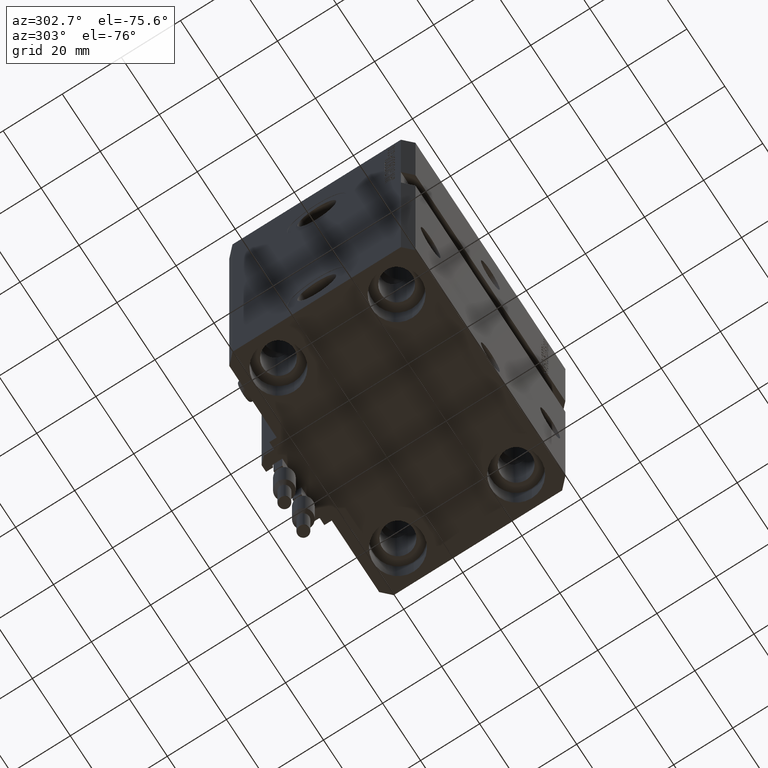
[diagram: clean part render]
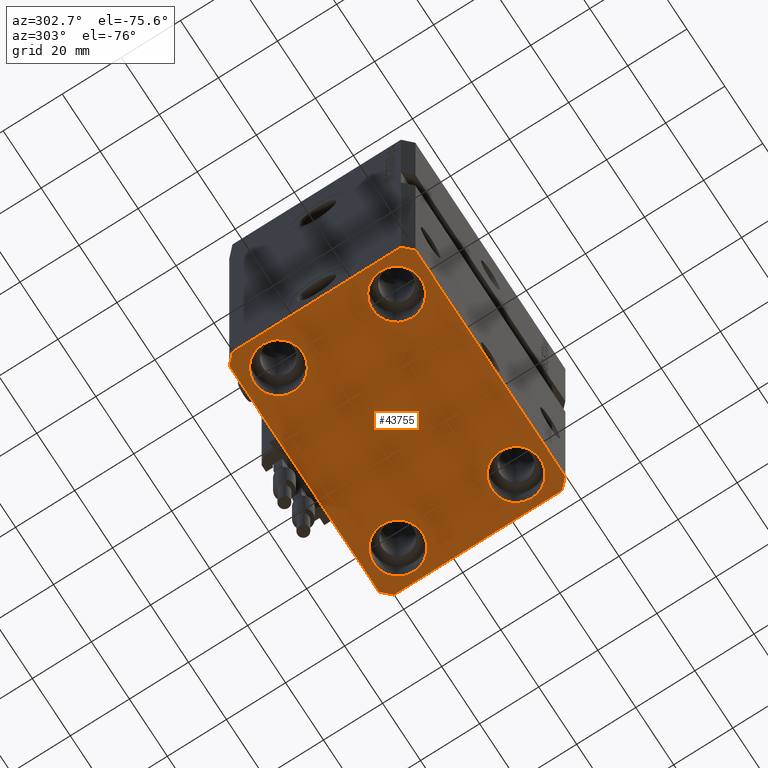
[diagram: same view with one face highlighted and labeled with its STEP entity id]
A machine part, auxiliary view. The second image highlights one B-rep face of the part: STEP entity #43755.
In plain terms, the highlighted planar face has unit normal (0, 0, 1).
Its self-contained STEP definition (entity closure, byte-faithful):
#263 = EDGE_CURVE ( 'NONE', #28839, #31645, #16067, .T. ) ;
#297 = ORIENTED_EDGE ( 'NONE', *, *, #1408, .F. ) ;
#313 = VECTOR ( 'NONE', #44669, 1000.000000000000000 ) ;
#593 = VERTEX_POINT ( 'NONE', #24576 ) ;
#632 = EDGE_CURVE ( 'NONE', #5877, #4064, #1685, .T. ) ;
#1134 = CARTESIAN_POINT ( 'NONE',  ( 31.50000000000000000, -20.00000000000000000, -123.0000000000000000 ) ) ;
#1408 = EDGE_CURVE ( 'NONE', #36962, #35902, #48893, .T. ) ;
#1685 = CIRCLE ( 'NONE', #41643, 8.250000000000000000 ) ;
#1818 = CARTESIAN_POINT ( 'NONE',  ( -31.50000000000000000, 20.00000000000000000, -123.0000000000000000 ) ) ;
#2023 = DIRECTION ( 'NONE',  ( 0.7071067811865483499, 0.7071067811865466846, 0.000000000000000000 ) ) ;
#2477 = VECTOR ( 'NONE', #2023, 1000.000000000000000 ) ;
#3087 = EDGE_LOOP ( 'NONE', ( #3405, #10742 ) ) ;
#3405 = ORIENTED_EDGE ( 'NONE', *, *, #33430, .T. ) ;
#3618 = DIRECTION ( 'NONE',  ( 0.7071067811865471286, -0.7071067811865479058, 0.000000000000000000 ) ) ;
#3641 = DIRECTION ( 'NONE',  ( 1.000000000000000000, 0.000000000000000000, 0.000000000000000000 ) ) ;
#4064 = VERTEX_POINT ( 'NONE', #13182 ) ;
#4069 = DIRECTION ( 'NONE',  ( 0.000000000000000000, 0.000000000000000000, 1.000000000000000000 ) ) ;
#4100 = CARTESIAN_POINT ( 'NONE',  ( 42.50000000000051870, 28.49999999999995381, -123.0000000000000000 ) ) ;
#4126 = EDGE_CURVE ( 'NONE', #16265, #36962, #12252, .T. ) ;
#4366 = DIRECTION ( 'NONE',  ( -0.000000000000000000, -0.000000000000000000, 1.000000000000000000 ) ) ;
#4886 = CARTESIAN_POINT ( 'NONE',  ( 31.50000000000000000, 20.00000000000001066, -123.0000000000000000 ) ) ;
#5203 = CARTESIAN_POINT ( 'NONE',  ( 31.50000000000000000, -20.00000000000000000, -123.0000000000000000 ) ) ;
#5209 = LINE ( 'NONE', #42964, #40178 ) ;
#5877 = VERTEX_POINT ( 'NONE', #26593 ) ;
#6294 = CARTESIAN_POINT ( 'NONE',  ( -31.50000000000000000, -20.00000000000000000, -123.0000000000000000 ) ) ;
#7218 = ORIENTED_EDGE ( 'NONE', *, *, #15534, .F. ) ;
#7322 = ORIENTED_EDGE ( 'NONE', *, *, #7858, .T. ) ;
#7745 = ORIENTED_EDGE ( 'NONE', *, *, #15670, .F. ) ;
#7858 = EDGE_CURVE ( 'NONE', #37567, #18969, #8631, .T. ) ;
#8631 = CIRCLE ( 'NONE', #23793, 8.249999999999992895 ) ;
#8680 = VERTEX_POINT ( 'NONE', #49241 ) ;
#9138 = DIRECTION ( 'NONE',  ( -0.000000000000000000, -0.000000000000000000, 1.000000000000000000 ) ) ;
#10148 = CARTESIAN_POINT ( 'NONE',  ( -42.50000000000000000, -28.50000000000000000, -123.0000000000000000 ) ) ;
#10680 = VERTEX_POINT ( 'NONE', #43454 ) ;
#10742 = ORIENTED_EDGE ( 'NONE', *, *, #21345, .T. ) ;
#10768 = ORIENTED_EDGE ( 'NONE', *, *, #263, .T. ) ;
#10868 = CARTESIAN_POINT ( 'NONE',  ( 42.50000000000051870, 28.49999999999995381, -123.0000000000000000 ) ) ;
#11249 = EDGE_LOOP ( 'NONE', ( #12694, #33121 ) ) ;
#11314 = CIRCLE ( 'NONE', #24863, 8.250000000000000000 ) ;
#11434 = DIRECTION ( 'NONE',  ( 1.000000000000000000, 0.000000000000000000, 0.000000000000000000 ) ) ;
#11490 = AXIS2_PLACEMENT_3D ( 'NONE', #43036, #24790, #47541 ) ;
#12066 = FACE_BOUND ( 'NONE', #25056, .T. ) ;
#12252 = LINE ( 'NONE', #36173, #14713 ) ;
#12694 = ORIENTED_EDGE ( 'NONE', *, *, #632, .T. ) ;
#12774 = DIRECTION ( 'NONE',  ( -0.000000000000000000, -0.000000000000000000, 1.000000000000000000 ) ) ;
#12900 = CARTESIAN_POINT ( 'NONE',  ( -42.50000000000000000, 28.50000000000000000, -123.0000000000000000 ) ) ;
#13079 = CIRCLE ( 'NONE', #11490, 8.249999999999992895 ) ;
#13182 = CARTESIAN_POINT ( 'NONE',  ( -23.25000000000000000, 20.00000000000000000, -123.0000000000000000 ) ) ;
#13193 = EDGE_LOOP ( 'NONE', ( #7218, #7745, #29128, #37751, #28073, #297, #28367, #17454 ) ) ;
#14353 = VERTEX_POINT ( 'NONE', #45367 ) ;
#14713 = VECTOR ( 'NONE', #23014, 1000.000000000000000 ) ;
#15420 = CARTESIAN_POINT ( 'NONE',  ( 39.50000000000000711, -31.50000000000000000, -123.0000000000000000 ) ) ;
#15534 = EDGE_CURVE ( 'NONE', #14353, #22332, #21869, .T. ) ;
#15670 = EDGE_CURVE ( 'NONE', #30491, #14353, #47261, .T. ) ;
#16067 = CIRCLE ( 'NONE', #24861, 8.249999999999992895 ) ;
#16207 = DIRECTION ( 'NONE',  ( 1.000000000000000000, 0.000000000000000000, 0.000000000000000000 ) ) ;
#16265 = VERTEX_POINT ( 'NONE', #12900 ) ;
#16746 = VECTOR ( 'NONE', #42345, 1000.000000000000114 ) ;
#17071 = DIRECTION ( 'NONE',  ( 1.000000000000000000, 0.000000000000000000, 0.000000000000000000 ) ) ;
#17307 = EDGE_CURVE ( 'NONE', #34768, #10680, #43791, .T. ) ;
#17454 = ORIENTED_EDGE ( 'NONE', *, *, #30087, .F. ) ;
#18648 = CARTESIAN_POINT ( 'NONE',  ( 42.50000000000000711, -28.50000000000000355, -123.0000000000000000 ) ) ;
#18969 = VERTEX_POINT ( 'NONE', #37415 ) ;
#19138 = CARTESIAN_POINT ( 'NONE',  ( -31.50000000000000000, -20.00000000000000000, -123.0000000000000000 ) ) ;
#19461 = VECTOR ( 'NONE', #26151, 1000.000000000000000 ) ;
#20163 = ORIENTED_EDGE ( 'NONE', *, *, #26850, .T. ) ;
#20630 = DIRECTION ( 'NONE',  ( 1.000000000000000000, 0.000000000000000000, 0.000000000000000000 ) ) ;
#21280 = CARTESIAN_POINT ( 'NONE',  ( 39.50000000000000711, -31.50000000000000000, -123.0000000000000000 ) ) ;
#21345 = EDGE_CURVE ( 'NONE', #593, #8680, #11314, .T. ) ;
#21396 = AXIS2_PLACEMENT_3D ( 'NONE', #42315, #4069, #27066 ) ;
#21532 = DIRECTION ( 'NONE',  ( -0.000000000000000000, -0.000000000000000000, 1.000000000000000000 ) ) ;
#21869 = LINE ( 'NONE', #29627, #35132 ) ;
#22332 = VERTEX_POINT ( 'NONE', #40782 ) ;
#22771 = AXIS2_PLACEMENT_3D ( 'NONE', #6294, #21532, #33270 ) ;
#23014 = DIRECTION ( 'NONE',  ( 0.000000000000000000, -1.000000000000000000, 0.000000000000000000 ) ) ;
#23714 = DIRECTION ( 'NONE',  ( -0.000000000000000000, -0.000000000000000000, 1.000000000000000000 ) ) ;
#23793 = AXIS2_PLACEMENT_3D ( 'NONE', #1134, #9138, #20630 ) ;
#23802 = FACE_BOUND ( 'NONE', #3087, .T. ) ;
#24576 = CARTESIAN_POINT ( 'NONE',  ( -23.25000000000000000, -20.00000000000000000, -123.0000000000000000 ) ) ;
#24715 = DIRECTION ( 'NONE',  ( 1.000000000000000000, 0.000000000000000000, 0.000000000000000000 ) ) ;
#24764 = EDGE_CURVE ( 'NONE', #18969, #37567, #28961, .T. ) ;
#24790 = DIRECTION ( 'NONE',  ( -0.000000000000000000, -0.000000000000000000, 1.000000000000000000 ) ) ;
#24861 = AXIS2_PLACEMENT_3D ( 'NONE', #4886, #45673, #11434 ) ;
#24863 = AXIS2_PLACEMENT_3D ( 'NONE', #19138, #4366, #3641 ) ;
#25056 = EDGE_LOOP ( 'NONE', ( #7322, #38633 ) ) ;
#25717 = CARTESIAN_POINT ( 'NONE',  ( 39.74999999999999289, 20.00000000000001066, -123.0000000000000000 ) ) ;
#25770 = EDGE_CURVE ( 'NONE', #35902, #34768, #5209, .T. ) ;
#26151 = DIRECTION ( 'NONE',  ( 8.886653596232072440E-15, 1.000000000000000000, 0.000000000000000000 ) ) ;
#26386 = EDGE_CURVE ( 'NONE', #10680, #30491, #30865, .T. ) ;
#26593 = CARTESIAN_POINT ( 'NONE',  ( -39.75000000000000000, 20.00000000000000000, -123.0000000000000000 ) ) ;
#26850 = EDGE_CURVE ( 'NONE', #31645, #28839, #13079, .T. ) ;
#27066 = DIRECTION ( 'NONE',  ( 1.000000000000000000, 0.000000000000000000, -0.000000000000000000 ) ) ;
#28018 = DIRECTION ( 'NONE',  ( 1.000000000000000000, 0.000000000000000000, 0.000000000000000000 ) ) ;
#28073 = ORIENTED_EDGE ( 'NONE', *, *, #25770, .F. ) ;
#28367 = ORIENTED_EDGE ( 'NONE', *, *, #4126, .F. ) ;
#28839 = VERTEX_POINT ( 'NONE', #25717 ) ;
#28961 = CIRCLE ( 'NONE', #30570, 8.249999999999992895 ) ;
#29128 = ORIENTED_EDGE ( 'NONE', *, *, #26386, .F. ) ;
#29627 = CARTESIAN_POINT ( 'NONE',  ( 39.50000000000056843, 31.50000000000000000, -123.0000000000000000 ) ) ;
#30087 = EDGE_CURVE ( 'NONE', #22332, #16265, #37660, .T. ) ;
#30491 = VERTEX_POINT ( 'NONE', #10868 ) ;
#30570 = AXIS2_PLACEMENT_3D ( 'NONE', #5203, #23714, #16207 ) ;
#30865 = LINE ( 'NONE', #18648, #19461 ) ;
#31521 = EDGE_CURVE ( 'NONE', #4064, #5877, #34682, .T. ) ;
#31536 = FACE_BOUND ( 'NONE', #11249, .T. ) ;
#31569 = DIRECTION ( 'NONE',  ( -0.000000000000000000, -0.000000000000000000, 1.000000000000000000 ) ) ;
#31645 = VERTEX_POINT ( 'NONE', #48685 ) ;
#33121 = ORIENTED_EDGE ( 'NONE', *, *, #31521, .T. ) ;
#33270 = DIRECTION ( 'NONE',  ( 1.000000000000000000, 0.000000000000000000, 0.000000000000000000 ) ) ;
#33430 = EDGE_CURVE ( 'NONE', #8680, #593, #38750, .T. ) ;
#34682 = CIRCLE ( 'NONE', #39458, 8.250000000000000000 ) ;
#34768 = VERTEX_POINT ( 'NONE', #15420 ) ;
#34806 = FACE_OUTER_BOUND ( 'NONE', #13193, .T. ) ;
#35132 = VECTOR ( 'NONE', #48637, 1000.000000000000000 ) ;
#35902 = VERTEX_POINT ( 'NONE', #46413 ) ;
#36173 = CARTESIAN_POINT ( 'NONE',  ( -42.50000000000000000, 28.50000000000000000, -123.0000000000000000 ) ) ;
#36962 = VERTEX_POINT ( 'NONE', #39671 ) ;
#37415 = CARTESIAN_POINT ( 'NONE',  ( 39.74999999999999289, -20.00000000000000000, -123.0000000000000000 ) ) ;
#37567 = VERTEX_POINT ( 'NONE', #39729 ) ;
#37660 = LINE ( 'NONE', #44423, #313 ) ;
#37751 = ORIENTED_EDGE ( 'NONE', *, *, #17307, .F. ) ;
#38633 = ORIENTED_EDGE ( 'NONE', *, *, #24764, .T. ) ;
#38750 = CIRCLE ( 'NONE', #22771, 8.250000000000000000 ) ;
#39263 = VECTOR ( 'NONE', #3618, 1000.000000000000000 ) ;
#39458 = AXIS2_PLACEMENT_3D ( 'NONE', #44023, #12774, #28018 ) ;
#39671 = CARTESIAN_POINT ( 'NONE',  ( -42.50000000000000000, -28.50000000000000000, -123.0000000000000000 ) ) ;
#39729 = CARTESIAN_POINT ( 'NONE',  ( 23.25000000000000355, -20.00000000000000000, -123.0000000000000000 ) ) ;
#40178 = VECTOR ( 'NONE', #24715, 1000.000000000000000 ) ;
#40782 = CARTESIAN_POINT ( 'NONE',  ( -39.50000000000000711, 31.50000000000000000, -123.0000000000000000 ) ) ;
#41643 = AXIS2_PLACEMENT_3D ( 'NONE', #1818, #31569, #17071 ) ;
#42315 = CARTESIAN_POINT ( 'NONE',  ( 0.000000000000000000, 0.000000000000000000, -123.0000000000000000 ) ) ;
#42345 = DIRECTION ( 'NONE',  ( -0.7071067811865356934, 0.7071067811865594521, 0.000000000000000000 ) ) ;
#42556 = FACE_BOUND ( 'NONE', #46289, .T. ) ;
#42791 = PLANE ( 'NONE',  #21396 ) ;
#42964 = CARTESIAN_POINT ( 'NONE',  ( -39.50000000000000711, -31.50000000000000000, -123.0000000000000000 ) ) ;
#43036 = CARTESIAN_POINT ( 'NONE',  ( 31.50000000000000000, 20.00000000000001066, -123.0000000000000000 ) ) ;
#43454 = CARTESIAN_POINT ( 'NONE',  ( 42.50000000000000711, -28.50000000000000355, -123.0000000000000000 ) ) ;
#43755 = ADVANCED_FACE ( 'NONE', ( #23802, #12066, #42556, #31536, #34806 ), #42791, .F. ) ;
#43791 = LINE ( 'NONE', #21280, #2477 ) ;
#44023 = CARTESIAN_POINT ( 'NONE',  ( -31.50000000000000000, 20.00000000000000000, -123.0000000000000000 ) ) ;
#44423 = CARTESIAN_POINT ( 'NONE',  ( -39.50000000000000711, 31.50000000000000000, -123.0000000000000000 ) ) ;
#44669 = DIRECTION ( 'NONE',  ( -0.7071067811865471286, -0.7071067811865479058, 0.000000000000000000 ) ) ;
#45367 = CARTESIAN_POINT ( 'NONE',  ( 39.50000000000056843, 31.50000000000000000, -123.0000000000000000 ) ) ;
#45673 = DIRECTION ( 'NONE',  ( -0.000000000000000000, -0.000000000000000000, 1.000000000000000000 ) ) ;
#46289 = EDGE_LOOP ( 'NONE', ( #20163, #10768 ) ) ;
#46413 = CARTESIAN_POINT ( 'NONE',  ( -39.50000000000000711, -31.50000000000000000, -123.0000000000000000 ) ) ;
#47261 = LINE ( 'NONE', #4100, #16746 ) ;
#47541 = DIRECTION ( 'NONE',  ( 1.000000000000000000, 0.000000000000000000, 0.000000000000000000 ) ) ;
#48637 = DIRECTION ( 'NONE',  ( -1.000000000000000000, 0.000000000000000000, 0.000000000000000000 ) ) ;
#48685 = CARTESIAN_POINT ( 'NONE',  ( 23.25000000000000355, 20.00000000000001066, -123.0000000000000000 ) ) ;
#48893 = LINE ( 'NONE', #10148, #39263 ) ;
#49241 = CARTESIAN_POINT ( 'NONE',  ( -39.75000000000000000, -20.00000000000000000, -123.0000000000000000 ) ) ;